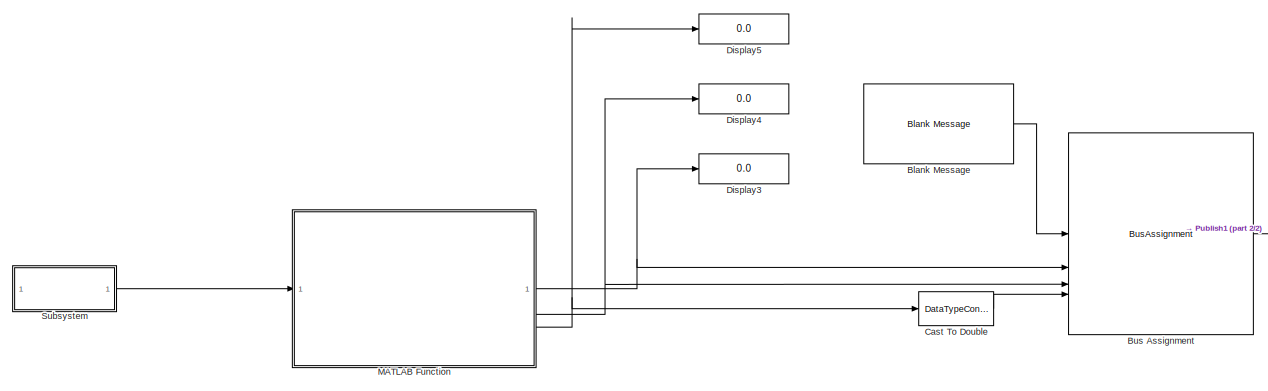
[diagram: root canvas - part 1/2, most of the canvas]
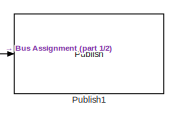
[diagram: root canvas - part 2/2, middle right region]
MODEL slx_007c791ab0e6
KIND model
CONFIG AbsTol = auto
CONFIG EnableMultiTasking = on
CONFIG FixedStep = auto
CONFIG MaxStep = auto
CONFIG MinStep = auto
CONFIG RelTol = 1e-3
CONFIG SampleTimeConstraint = Unconstrained
CONFIG SolverName = FixedStepAuto
CONFIG StartTime = 0.0
CONFIG StopTime = inf
WORKSPACE source: mxarray member
WORKSPACE SL_ROS_VariableLengthArrays_MaxSizes: object (value not decoded)
BLOCK [Reference] Blank Message  REF=robotlib/Blank Message
  SourceBlock = robotlib/Blank Message
  SourceType = ROS Blank Message
BLOCK [BusAssignment] Bus Assignment
  AssignedSignals = X,Y,Z
BLOCK [DataTypeConversion] Cast To Double
  OutDataTypeStr = double
  RndMeth = Floor
  SaturateOnIntegerOverflow = off
BLOCK [Display] Display3
  Decimation = 1
BLOCK [Display] Display4
  Decimation = 1
BLOCK [Display] Display5
  Decimation = 1
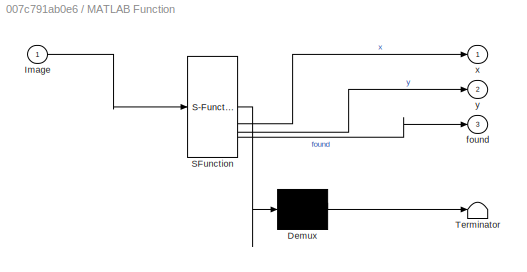
BLOCK [SubSystem] MATLAB Function
  ErrorFcn = Stateflow.Translate.translate
  PermitHierarchicalResolution = ExplicitOnly
  SFBlockType = MATLAB Function
  TreatAsAtomicUnit = on
BLOCK [Demux] MATLAB Function/ Demux 
  Outputs = 1
BLOCK [S-Function] MATLAB Function/ SFunction 
  EnableBusSupport = on
  FunctionName = sf_sfun
  PortCounts = [1 4]
  SFcnIsStateOwnerBlock = off
  SFunctionDeploymentMode = off
  Tag = Stateflow S-Function 2
BLOCK [Terminator] MATLAB Function/ Terminator 
BLOCK [Inport] MATLAB Function/Image
BLOCK [Outport] MATLAB Function/found
  Port = 3
BLOCK [Outport] MATLAB Function/x
BLOCK [Outport] MATLAB Function/y
  Port = 2
BLOCK [Reference] Publish1  REF=robotlib/Publish
  SourceBlock = robotlib/Publish
  SourceType = ROS Publish
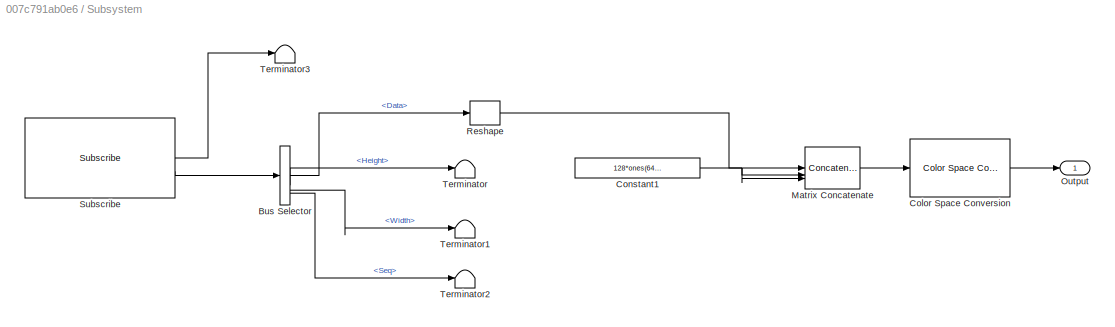
BLOCK [SubSystem] Subsystem
BLOCK [BusSelector] Subsystem/Bus Selector
  DialogController = Simulink.DDGSource_BusSelector
  OutputSignals = Data,Height,Width,Header.Seq
BLOCK [Reference] Subsystem/Color Space Conversion  REF=visionconversions/Color Space
 Conversion
  SourceBlock = visionconversions/Color Space\n Conversion
  SourceType = Color Space Conversion
BLOCK [Constant] Subsystem/Constant1
  Value = 128*ones(640,480,'uint8')
BLOCK [Concatenate] Subsystem/Matrix Concatenate
  ConcatenateDimension = 3
  Mode = Multidimensional array
  NumInputs = 3
BLOCK [Outport] Subsystem/Output
BLOCK [Reshape] Subsystem/Reshape
  OutputDimensionality = Customize
  OutputDimensions = [640,480]
BLOCK [Reference] Subsystem/Subscribe  REF=robotlib/Subscribe
  SourceBlock = robotlib/Subscribe
  SourceType = ROS Subscribe
BLOCK [Terminator] Subsystem/Terminator
BLOCK [Terminator] Subsystem/Terminator1
BLOCK [Terminator] Subsystem/Terminator2
BLOCK [Terminator] Subsystem/Terminator3
LINE Blank Message:1 -> Bus Assignment:1
LINE Bus Assignment:1 -> Publish1:1
LINE Cast To Double:1 -> Bus Assignment:4
NET MATLAB Function:1 -> Bus Assignment:2, Display3:1
NET MATLAB Function:2 -> Bus Assignment:3, Display4:1
NET MATLAB Function:3 -> Cast To Double:1, Display5:1
LINE Subsystem/Bus Selector:1 -> Subsystem/Reshape:1
LINE Subsystem/Bus Selector:2 -> Subsystem/Terminator:1
LINE Subsystem/Bus Selector:3 -> Subsystem/Terminator1:1
LINE Subsystem/Bus Selector:4 -> Subsystem/Terminator2:1
LINE Subsystem/Color Space Conversion:1 -> Subsystem/Output:1
NET Subsystem/Constant1:1 -> Subsystem/Matrix Concatenate:2, Subsystem/Matrix Concatenate:3
LINE Subsystem/Matrix Concatenate:1 -> Subsystem/Color Space Conversion:1
LINE Subsystem/Reshape:1 -> Subsystem/Matrix Concatenate:1
LINE Subsystem/Subscribe:1 -> Subsystem/Terminator3:1
LINE Subsystem/Subscribe:2 -> Subsystem/Bus Selector:1
LINE Subsystem:1 -> MATLAB Function:1
note: NET lines group one-source signal fan-out (src -> all destinations, sorted); 1:1 wires keep LINE
CHART MATLAB Function states=1 transitions=1
  STATE_LABEL 'eML_blk_kernel()'
  STATE_LABEL 'SCRIPT:\nfunction [x,y,found] = Localize(Image)\n%outputImage=Image;\npersistent initialized focalLength principalPoint imageSize radialDistortion tangentialDistortion newres scaleX scaleY gotmap fishEye mapX mapY StoredX StoredY PinIntrinsics;\nx=0;\ny=0;\nfound=true;\nif((isempty(initialized)))\n    StoredX=0;\n    StoredY=0;\n    focalLength = [120, 120];\n    principalPoint = [160.5, 120.5];\n    imageSiz...<+1869ch>'
CHART  states=0 transitions=0
